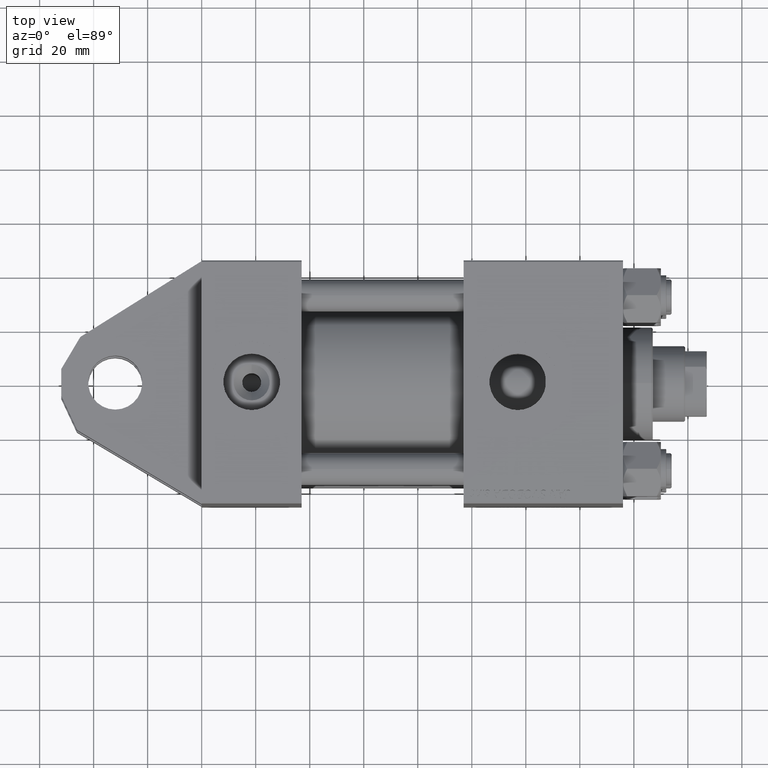
[diagram: clean part render]
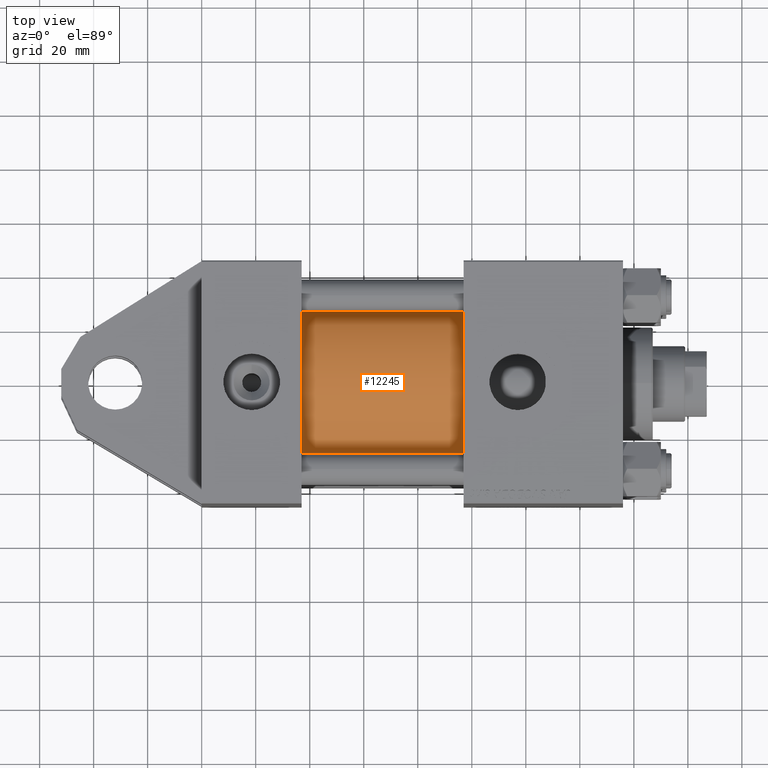
[diagram: same view with one face highlighted and labeled with its STEP entity id]
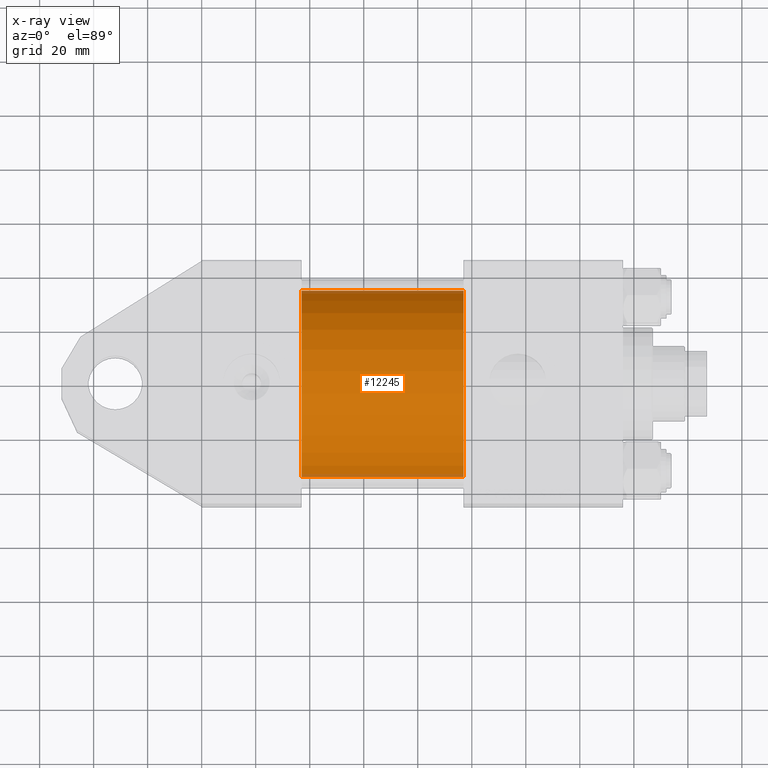
[diagram: x-ray of the same camera — body ghosted, the highlighted face saturated]
A machine part, top view. The second image highlights one B-rep face of the part: STEP entity #12245.
The next image is the same camera in x-ray: the body ghosted, the highlighted face saturated — about 3% of this face is hidden behind the body in this view.
In plain terms, the highlighted cylindrical surface (partial cylindrical patch) has radius 34.5 mm, axis along (-1, -0, 0).
Its self-contained STEP definition (entity closure, byte-faithful):
#488 = VERTEX_POINT ( 'NONE', #45723 ) ;
#1176 = LINE ( 'NONE', #16288, #10778 ) ;
#1658 = EDGE_CURVE ( 'NONE', #488, #27679, #7423, .T. ) ;
#3997 = VERTEX_POINT ( 'NONE', #9640 ) ;
#4301 = DIRECTION ( 'NONE',  ( -1.000000000000000000, -0.000000000000000000, -0.000000000000000000 ) ) ;
#5989 = DIRECTION ( 'NONE',  ( -1.000000000000000000, -0.000000000000000000, -0.000000000000000000 ) ) ;
#7423 = CIRCLE ( 'NONE', #33100, 34.49999999999999289 ) ;
#7697 = ORIENTED_EDGE ( 'NONE', *, *, #1658, .T. ) ;
#8499 = DIRECTION ( 'NONE',  ( 0.000000000000000000, 0.000000000000000000, 1.000000000000000000 ) ) ;
#9126 = EDGE_LOOP ( 'NONE', ( #45100, #22969, #15177, #7697 ) ) ;
#9640 = CARTESIAN_POINT ( 'NONE',  ( 97.00000000000000000, -3.469446951953614189E-15, 34.49999999999999289 ) ) ;
#10778 = VECTOR ( 'NONE', #11754, 1000.000000000000000 ) ;
#11754 = DIRECTION ( 'NONE',  ( -1.000000000000000000, -0.000000000000000000, -0.000000000000000000 ) ) ;
#11894 = EDGE_CURVE ( 'NONE', #3997, #488, #47290, .T. ) ;
#12245 = ADVANCED_FACE ( 'NONE', ( #43705 ), #40430, .T. ) ;
#15177 = ORIENTED_EDGE ( 'NONE', *, *, #11894, .T. ) ;
#16288 = CARTESIAN_POINT ( 'NONE',  ( 97.00000000000000000, 7.555845051047534515E-16, -34.49999999999999289 ) ) ;
#18233 = EDGE_CURVE ( 'NONE', #3997, #44137, #38647, .T. ) ;
#20087 = CARTESIAN_POINT ( 'NONE',  ( 97.00000000000000000, 7.555845051047534515E-16, -34.49999999999999289 ) ) ;
#20950 = AXIS2_PLACEMENT_3D ( 'NONE', #23384, #46526, #30928 ) ;
#21311 = CARTESIAN_POINT ( 'NONE',  ( 97.00000000000000000, -3.469446951953614189E-15, 0.000000000000000000 ) ) ;
#22969 = ORIENTED_EDGE ( 'NONE', *, *, #18233, .F. ) ;
#23384 = CARTESIAN_POINT ( 'NONE',  ( 97.00000000000000000, -3.469446951953614189E-15, 0.000000000000000000 ) ) ;
#26234 = EDGE_CURVE ( 'NONE', #44137, #27679, #1176, .T. ) ;
#27679 = VERTEX_POINT ( 'NONE', #35589 ) ;
#28365 = DIRECTION ( 'NONE',  ( 0.000000000000000000, 0.000000000000000000, 1.000000000000000000 ) ) ;
#30928 = DIRECTION ( 'NONE',  ( 0.000000000000000000, 0.000000000000000000, -1.000000000000000000 ) ) ;
#33100 = AXIS2_PLACEMENT_3D ( 'NONE', #43203, #43691, #8499 ) ;
#35589 = CARTESIAN_POINT ( 'NONE',  ( 37.00000000000000000, 7.555845051047534515E-16, -34.49999999999999289 ) ) ;
#38543 = VECTOR ( 'NONE', #4301, 1000.000000000000000 ) ;
#38647 = CIRCLE ( 'NONE', #20950, 34.49999999999999289 ) ;
#40430 = CYLINDRICAL_SURFACE ( 'NONE', #45803, 34.49999999999999289 ) ;
#42524 = CARTESIAN_POINT ( 'NONE',  ( 97.00000000000000000, -3.469446951953614189E-15, 34.49999999999999289 ) ) ;
#43203 = CARTESIAN_POINT ( 'NONE',  ( 37.00000000000000000, -3.469446951953614189E-15, 0.000000000000000000 ) ) ;
#43691 = DIRECTION ( 'NONE',  ( 1.000000000000000000, -0.000000000000000000, 0.000000000000000000 ) ) ;
#43705 = FACE_OUTER_BOUND ( 'NONE', #9126, .T. ) ;
#44137 = VERTEX_POINT ( 'NONE', #20087 ) ;
#45100 = ORIENTED_EDGE ( 'NONE', *, *, #26234, .F. ) ;
#45723 = CARTESIAN_POINT ( 'NONE',  ( 37.00000000000000000, -3.469446951953614189E-15, 34.49999999999999289 ) ) ;
#45803 = AXIS2_PLACEMENT_3D ( 'NONE', #21311, #5989, #28365 ) ;
#46526 = DIRECTION ( 'NONE',  ( 1.000000000000000000, 0.000000000000000000, 0.000000000000000000 ) ) ;
#47290 = LINE ( 'NONE', #42524, #38543 ) ;